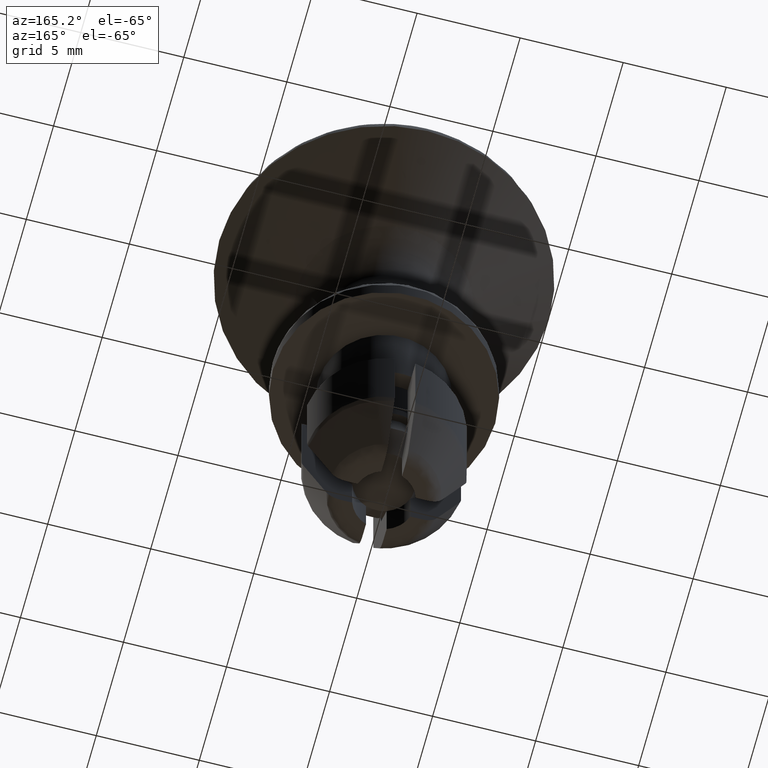
[diagram: clean part render]
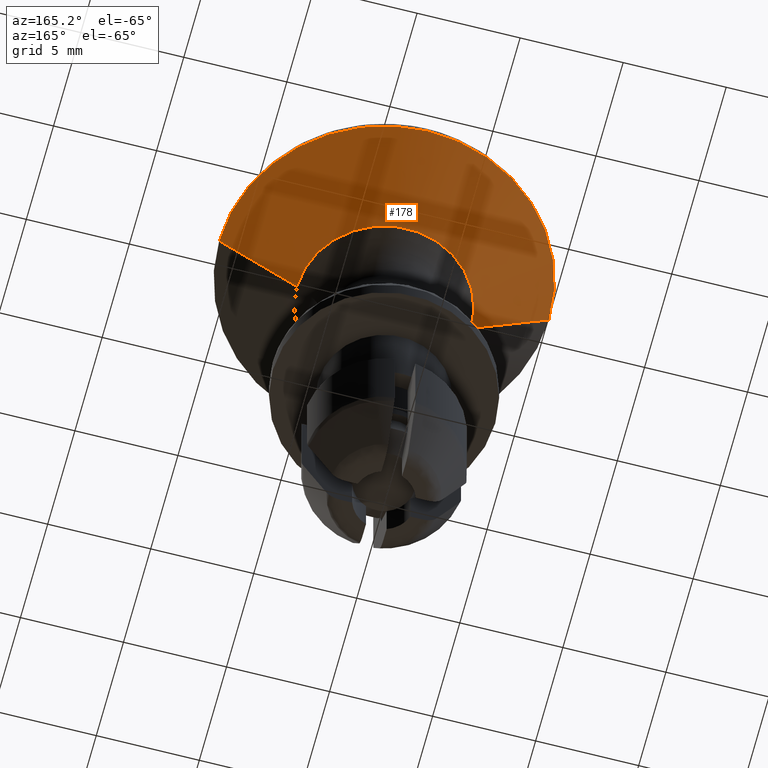
[diagram: same view with one face highlighted and labeled with its STEP entity id]
A machine part, auxiliary view. The second image highlights one B-rep face of the part: STEP entity #178.
In plain terms, the highlighted face is a freeform B-spline surface patch.
Its self-contained STEP definition (entity closure, byte-faithful):
#178=ADVANCED_FACE('',(#862),#861,.T.);
#861=( BOUNDED_SURFACE() B_SPLINE_SURFACE( 2,1,((#1549,#1550),(#1551,#1552),(#1553,#1554),(#1555,#1556),(#1557,#1558)), .UNSPECIFIED.,.F.,.F.,.F.) B_SPLINE_SURFACE_WITH_KNOTS((3,2,3),(2,2),(0.00000000000E+00,5.00000000000E-01,1.00000000000E+00),(0.00000000000E+00,1.00000000000E+00), .UNSPECIFIED. ) GEOMETRIC_REPRESENTATION_ITEM() RATIONAL_B_SPLINE_SURFACE(((1.00000000000E+00,1.00000000000E+00),(7.07106781187E-01,7.07106781187E-01),(1.00000000000E+00,1.00000000000E+00),(7.07106781187E-01,7.07106781187E-01),(1.00000000000E+00,1.00000000000E+00))) REPRESENTATION_ITEM('') SURFACE() );
#862=FACE_OUTER_BOUND('',#1559,.T.);
#1549=CARTESIAN_POINT('',(0.00000000000E+00,0.00000000000E+00,1.74229412388E+00));
#1550=CARTESIAN_POINT('',(1.13134133087E+01,1.38549353960E-15,1.07370361732E+01));
#1551=CARTESIAN_POINT('',(0.00000000000E+00,0.00000000000E+00,1.74229412388E+00));
#1552=CARTESIAN_POINT('',(1.13134133087E+01,1.13134133087E+01,1.07370361732E+01));
#1553=CARTESIAN_POINT('',(0.00000000000E+00,0.00000000000E+00,1.74229412388E+00));
#1554=CARTESIAN_POINT('',(-6.92746769798E-16,1.13134133087E+01,1.07370361732E+01));
#1555=CARTESIAN_POINT('',(0.00000000000E+00,0.00000000000E+00,1.74229412388E+00));
#1556=CARTESIAN_POINT('',(-1.13134133087E+01,1.13134133087E+01,1.07370361732E+01));
#1557=CARTESIAN_POINT('',(0.00000000000E+00,0.00000000000E+00,1.74229412388E+00));
#1558=CARTESIAN_POINT('',(-1.13134133087E+01,0.00000000000E+00,1.07370361732E+01));
#1559=EDGE_LOOP('',(#2034,#2035,#2036,#2037));
#2034=ORIENTED_EDGE('',*,*,#2279,.F.);
#2035=ORIENTED_EDGE('',*,*,#2276,.T.);
#2036=ORIENTED_EDGE('',*,*,#2275,.T.);
#2037=ORIENTED_EDGE('',*,*,#2278,.F.);
#2275=EDGE_CURVE('',#3440,#3439,#3459,.T.);
#2276=EDGE_CURVE('',#3465,#3440,#3466,.T.);
#2278=EDGE_CURVE('',#3472,#3439,#3479,.T.);
#2279=EDGE_CURVE('',#3465,#3472,#3485,.T.);
#3439=VERTEX_POINT('',#4404);
#3440=VERTEX_POINT('',#4405);
#3459=CIRCLE('',#4421,7.99979126897E+00);
#3465=VERTEX_POINT('',#4422);
#3466=(BOUNDED_CURVE() B_SPLINE_CURVE(1,(#4423,#4424),.UNSPECIFIED.,.F.,.F.) B_SPLINE_CURVE_WITH_KNOTS((2,2),(3.73185339570E-01,7.07106781745E-01),.UNSPECIFIED.) CURVE() GEOMETRIC_REPRESENTATION_ITEM() RATIONAL_B_SPLINE_CURVE((1.00000000000E+00,1.00000000000E+00)) REPRESENTATION_ITEM('') );
#3472=VERTEX_POINT('',#4425);
#3479=(BOUNDED_CURVE() B_SPLINE_CURVE(1,(#4430,#4431),.UNSPECIFIED.,.F.,.F.) B_SPLINE_CURVE_WITH_KNOTS((2,2),(3.73185337203E-01,7.07106780816E-01),.UNSPECIFIED.) CURVE() GEOMETRIC_REPRESENTATION_ITEM() RATIONAL_B_SPLINE_CURVE((7.50000000000E-01,7.50000000000E-01)) REPRESENTATION_ITEM('') );
#3485=CIRCLE('',#4435,4.22200000000E+00);
#4404=CARTESIAN_POINT('',(7.99979126897E+00,8.88178419700E-16,8.10253722200E+00));
#4405=CARTESIAN_POINT('',(-7.99979126897E+00,0.00000000000E+00,8.10253722200E+00));
#4418=CARTESIAN_POINT('',(0.00000000000E+00,0.00000000000E+00,8.10253722200E+00));
#4419=DIRECTION('',(-0.00000000000E+00,0.00000000000E+00,-1.00000000000E+00));
#4420=DIRECTION('',(-1.00000000000E+00,-1.22460635382E-16,0.00000000000E+00));
#4421=AXIS2_PLACEMENT_3D('',#4418,#4419,#4420);
#4422=CARTESIAN_POINT('',(-4.22200000000E+00,0.00000000000E+00,5.09900000000E+00));
#4423=CARTESIAN_POINT('',(-4.22199998731E+00,-1.03405760206E-15,5.09899998991E+00));
#4424=CARTESIAN_POINT('',(-7.99979127529E+00,-1.95931904500E-15,8.10253722703E+00));
#4425=CARTESIAN_POINT('',(4.22200000000E+00,2.96059473233E-16,5.09900000000E+00));
#4430=CARTESIAN_POINT('',(4.22199996053E+00,1.10485054351E-15,5.09899996862E+00));
#4431=CARTESIAN_POINT('',(7.99979126478E+00,2.09345661048E-15,8.10253721867E+00));
#4432=CARTESIAN_POINT('',(0.00000000000E+00,0.00000000000E+00,5.09900000000E+00));
#4433=DIRECTION('',(-0.00000000000E+00,0.00000000000E+00,-1.00000000000E+00));
#4434=DIRECTION('',(-1.00000000000E+00,-1.22460635382E-16,0.00000000000E+00));
#4435=AXIS2_PLACEMENT_3D('',#4432,#4433,#4434);